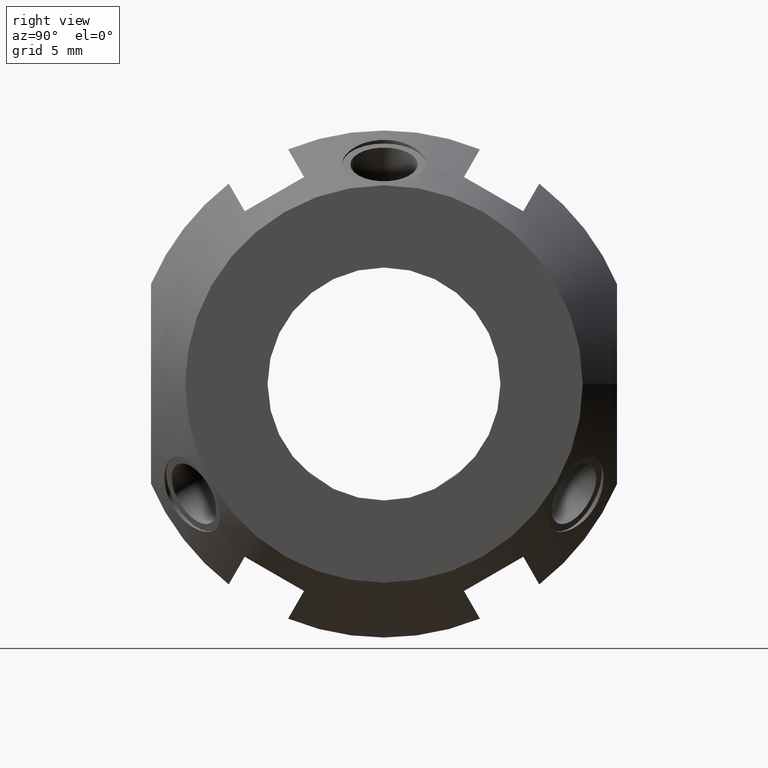
[diagram: clean part render]
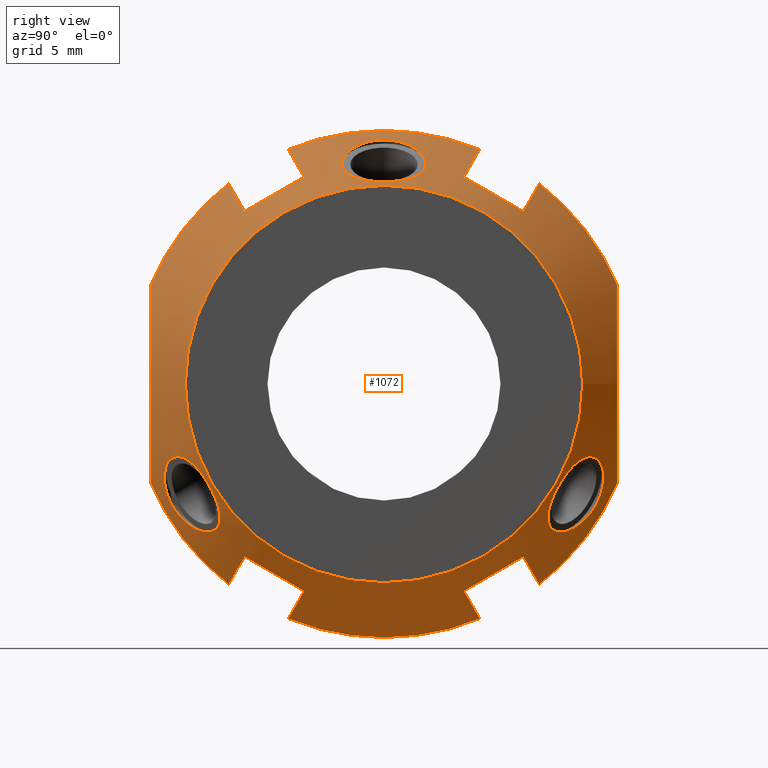
[diagram: same view with one face highlighted and labeled with its STEP entity id]
A machine part, right view. The second image highlights one B-rep face of the part: STEP entity #1072.
In plain terms, the highlighted conical surface has half-angle 30 deg.
Its self-contained STEP definition (entity closure, byte-faithful):
#90=CARTESIAN_POINT('',(15.065672554237217,10.165063509461094,-12.606406460551018));
#91=VERTEX_POINT('',#90);
#98=CARTESIAN_POINT('',(15.065672554237221,5.834936490538904,-15.106406460551016));
#99=VERTEX_POINT('',#98);
#100=CARTESIAN_POINT('',(15.065672554237221,5.834936490538904,-15.106406460551016));
#101=CARTESIAN_POINT('',(15.734144054606888,7.999999999999998,-13.856406460551021));
#102=CARTESIAN_POINT('',(15.065672554237217,10.165063509461094,-12.606406460551018));
#110=(BOUNDED_CURVE()B_SPLINE_CURVE(2,(#100,#101,#102),.UNSPECIFIED.,.F.,.U.)B_SPLINE_CURVE_WITH_KNOTS((3,3),(0.729099831313412,1.320290321878511),.UNSPECIFIED.)CURVE()GEOMETRIC_REPRESENTATION_ITEM()RATIONAL_B_SPLINE_CURVE((1.071623768673092,1.084626231326909,1.071623768673092))REPRESENTATION_ITEM(''));
#111=EDGE_CURVE('',#99,#91,#110,.T.);
#143=CARTESIAN_POINT('',(11.071796769724481,7.000087880450581,-17.124507866387543));
#144=VERTEX_POINT('',#143);
#145=CARTESIAN_POINT('',(11.071796769724473,7.000087880450582,-17.124507866387546));
#146=CARTESIAN_POINT('',(13.204284585915129,6.378792642015712,-16.04839294691773));
#147=CARTESIAN_POINT('',(15.065672554237221,5.834936490538904,-15.106406460551014));
#155=(BOUNDED_CURVE()B_SPLINE_CURVE(2,(#145,#146,#147),.UNSPECIFIED.,.F.,.U.)B_SPLINE_CURVE_WITH_KNOTS((3,3),(0.0,0.462399793100946),.UNSPECIFIED.)CURVE()GEOMETRIC_REPRESENTATION_ITEM()RATIONAL_B_SPLINE_CURVE((1.0,1.002263367631491,1.0))REPRESENTATION_ITEM(''));
#156=EDGE_CURVE('',#144,#99,#155,.T.);
#187=CARTESIAN_POINT('',(11.071796769724479,11.330214899372773,-14.624507866387546));
#188=VERTEX_POINT('',#187);
#195=CARTESIAN_POINT('',(15.065672554237217,10.165063509461094,-12.606406460551018));
#196=CARTESIAN_POINT('',(13.204284585814555,10.708919660967249,-13.548392946968557));
#197=CARTESIAN_POINT('',(11.071796769724473,11.330214899372775,-14.624507866387548));
#205=(BOUNDED_CURVE()B_SPLINE_CURVE(2,(#195,#196,#197),.UNSPECIFIED.,.F.,.U.)B_SPLINE_CURVE_WITH_KNOTS((3,3),(0.0,0.462399793100946),.UNSPECIFIED.)CURVE()GEOMETRIC_REPRESENTATION_ITEM()RATIONAL_B_SPLINE_CURVE((1.0,1.00226336761985,1.0))REPRESENTATION_ITEM(''));
#206=EDGE_CURVE('',#91,#188,#205,.T.);
#234=CARTESIAN_POINT('',(15.065672554237219,-10.165063509461092,-12.606406460551018));
#235=VERTEX_POINT('',#234);
#242=CARTESIAN_POINT('',(11.071796769724473,-11.330214899372775,-14.624507866387544));
#243=VERTEX_POINT('',#242);
#244=CARTESIAN_POINT('',(11.071796769724473,-11.330214899372775,-14.624507866387546));
#245=CARTESIAN_POINT('',(13.204284585565491,-10.708919661039914,-13.548392947094419));
#246=CARTESIAN_POINT('',(15.065672554237217,-10.165063509461092,-12.606406460551018));
#254=(BOUNDED_CURVE()B_SPLINE_CURVE(2,(#244,#245,#246),.UNSPECIFIED.,.F.,.U.)B_SPLINE_CURVE_WITH_KNOTS((3,3),(0.0,0.462399793100946),.UNSPECIFIED.)CURVE()GEOMETRIC_REPRESENTATION_ITEM()RATIONAL_B_SPLINE_CURVE((1.0,1.002263367607429,1.0))REPRESENTATION_ITEM(''));
#255=EDGE_CURVE('',#243,#235,#254,.T.);
#288=CARTESIAN_POINT('',(11.071796769724475,-7.000087880450582,-17.124507866387546));
#289=VERTEX_POINT('',#288);
#296=CARTESIAN_POINT('',(15.065672554237215,-5.834936490538903,-15.106406460551018));
#297=VERTEX_POINT('',#296);
#298=CARTESIAN_POINT('',(15.065672554237215,-5.834936490538903,-15.106406460551018));
#299=CARTESIAN_POINT('',(13.204284585917227,-6.3787926420151,-16.048392946916671));
#300=CARTESIAN_POINT('',(11.071796769724473,-7.000087880450582,-17.124507866387546));
#308=(BOUNDED_CURVE()B_SPLINE_CURVE(2,(#298,#299,#300),.UNSPECIFIED.,.F.,.U.)B_SPLINE_CURVE_WITH_KNOTS((3,3),(0.0,0.462399793100945),.UNSPECIFIED.)CURVE()GEOMETRIC_REPRESENTATION_ITEM()RATIONAL_B_SPLINE_CURVE((1.0,1.002263367636361,1.0))REPRESENTATION_ITEM(''));
#309=EDGE_CURVE('',#297,#289,#308,.T.);
#339=CARTESIAN_POINT('',(15.065672554237221,-10.165063509461092,-12.606406460551018));
#340=CARTESIAN_POINT('',(15.734144054606896,-8.0,-13.856406460551016));
#341=CARTESIAN_POINT('',(15.065672554237217,-5.834936490538903,-15.106406460551016));
#349=(BOUNDED_CURVE()B_SPLINE_CURVE(2,(#339,#340,#341),.UNSPECIFIED.,.F.,.U.)B_SPLINE_CURVE_WITH_KNOTS((3,3),(0.729099831313413,1.320290321878512),.UNSPECIFIED.)CURVE()GEOMETRIC_REPRESENTATION_ITEM()RATIONAL_B_SPLINE_CURVE((1.071623768673092,1.084626231326909,1.071623768673092))REPRESENTATION_ITEM(''));
#350=EDGE_CURVE('',#235,#297,#349,.T.);
#557=CARTESIAN_POINT('',(11.071796769724482,0.0,0.0));
#558=DIRECTION('',(1.0,0.0,0.0));
#559=DIRECTION('',(0.0,1.0,0.0));
#560=AXIS2_PLACEMENT_3D('',#557,#558,#559);
#561=CIRCLE('',#560,18.5);
#562=EDGE_CURVE('',#289,#144,#561,.T.);
#575=CARTESIAN_POINT('',(11.071796769724482,-17.000000000000043,-7.297259759663116));
#576=VERTEX_POINT('',#575);
#577=CARTESIAN_POINT('',(11.071796769724482,0.0,0.0));
#578=DIRECTION('',(1.0,0.0,0.0));
#579=DIRECTION('',(0.0,1.0,0.0));
#580=AXIS2_PLACEMENT_3D('',#577,#578,#579);
#581=CIRCLE('',#580,18.5);
#582=EDGE_CURVE('',#576,#243,#581,.T.);
#600=CARTESIAN_POINT('',(15.065672554237221,5.834936490538904,15.106406460551016));
#601=VERTEX_POINT('',#600);
#608=CARTESIAN_POINT('',(15.065672554237217,10.165063509461094,12.606406460551018));
#609=VERTEX_POINT('',#608);
#610=CARTESIAN_POINT('',(15.065672554237219,10.165063509461094,12.606406460551018));
#611=CARTESIAN_POINT('',(15.734144054606888,7.999999999999998,13.856406460551018));
#612=CARTESIAN_POINT('',(15.065672554237223,5.834936490538904,15.106406460551016));
#620=(BOUNDED_CURVE()B_SPLINE_CURVE(2,(#610,#611,#612),.UNSPECIFIED.,.F.,.U.)B_SPLINE_CURVE_WITH_KNOTS((3,3),(0.729099831313411,1.320290321878508),.UNSPECIFIED.)CURVE()GEOMETRIC_REPRESENTATION_ITEM()RATIONAL_B_SPLINE_CURVE((1.071623768673091,1.084626231326908,1.071623768673091))REPRESENTATION_ITEM(''));
#621=EDGE_CURVE('',#609,#601,#620,.T.);
#639=CARTESIAN_POINT('',(11.071796769724479,11.330214899372773,14.624507866387546));
#640=VERTEX_POINT('',#639);
#641=CARTESIAN_POINT('',(11.071796769724482,11.330214899372773,14.624507866387544));
#642=CARTESIAN_POINT('',(13.204284585649592,10.708919661015381,13.548392947051928));
#643=CARTESIAN_POINT('',(15.065672554237217,10.165063509461094,12.606406460551018));
#651=(BOUNDED_CURVE()B_SPLINE_CURVE(2,(#641,#642,#643),.UNSPECIFIED.,.F.,.U.)B_SPLINE_CURVE_WITH_KNOTS((3,3),(0.0,0.43790397564983),.UNSPECIFIED.)CURVE()GEOMETRIC_REPRESENTATION_ITEM()RATIONAL_B_SPLINE_CURVE((1.0,1.004151789649042,1.003771865033865))REPRESENTATION_ITEM(''));
#652=EDGE_CURVE('',#640,#609,#651,.T.);
#669=CARTESIAN_POINT('',(11.071796769724481,7.000087880450581,17.124507866387543));
#670=VERTEX_POINT('',#669);
#677=CARTESIAN_POINT('',(15.065672554237221,5.834936490538904,15.106406460551016));
#678=CARTESIAN_POINT('',(13.204284585653731,6.378792642091979,16.048392947049827));
#679=CARTESIAN_POINT('',(11.071796769724482,7.000087880450581,17.124507866387543));
#687=(BOUNDED_CURVE()B_SPLINE_CURVE(2,(#677,#678,#679),.UNSPECIFIED.,.F.,.U.)B_SPLINE_CURVE_WITH_KNOTS((3,3),(0.364479002347894,0.802382977996813),.UNSPECIFIED.)CURVE()GEOMETRIC_REPRESENTATION_ITEM()RATIONAL_B_SPLINE_CURVE((1.003771865033879,1.004151789649047,1.0))REPRESENTATION_ITEM(''));
#688=EDGE_CURVE('',#601,#670,#687,.T.);
#700=CARTESIAN_POINT('',(15.065672554237219,-10.165063509461092,12.606406460551018));
#701=VERTEX_POINT('',#700);
#708=CARTESIAN_POINT('',(15.065672554237215,-5.834936490538903,15.106406460551018));
#709=VERTEX_POINT('',#708);
#710=CARTESIAN_POINT('',(15.065672554237217,-5.834936490538903,15.106406460551016));
#711=CARTESIAN_POINT('',(15.734144054606888,-7.999999999999998,13.856406460551014));
#712=CARTESIAN_POINT('',(15.065672554237221,-10.165063509461092,12.606406460551018));
#720=(BOUNDED_CURVE()B_SPLINE_CURVE(2,(#710,#711,#712),.UNSPECIFIED.,.F.,.U.)B_SPLINE_CURVE_WITH_KNOTS((3,3),(0.72909983131341,1.320290321878508),.UNSPECIFIED.)CURVE()GEOMETRIC_REPRESENTATION_ITEM()RATIONAL_B_SPLINE_CURVE((1.071623768673092,1.084626231326909,1.071623768673092))REPRESENTATION_ITEM(''));
#721=EDGE_CURVE('',#709,#701,#720,.T.);
#739=CARTESIAN_POINT('',(11.071796769724475,-7.000087880450582,17.124507866387546));
#740=VERTEX_POINT('',#739);
#741=CARTESIAN_POINT('',(11.071796769724482,-7.000087880450581,17.124507866387539));
#742=CARTESIAN_POINT('',(13.204284585668972,-6.378792642087515,16.048392947042096));
#743=CARTESIAN_POINT('',(15.065672554237215,-5.834936490538903,15.106406460551018));
#751=(BOUNDED_CURVE()B_SPLINE_CURVE(2,(#741,#742,#743),.UNSPECIFIED.,.F.,.U.)B_SPLINE_CURVE_WITH_KNOTS((3,3),(0.0,0.437903975646609),.UNSPECIFIED.)CURVE()GEOMETRIC_REPRESENTATION_ITEM()RATIONAL_B_SPLINE_CURVE((1.0,1.004151789651634,1.003771865036253))REPRESENTATION_ITEM(''));
#752=EDGE_CURVE('',#740,#709,#751,.T.);
#769=CARTESIAN_POINT('',(11.071796769724473,-11.330214899372775,14.624507866387544));
#770=VERTEX_POINT('',#769);
#777=CARTESIAN_POINT('',(15.065672554237219,-10.165063509461092,12.606406460551018));
#778=CARTESIAN_POINT('',(13.204284585656112,-10.708919661013471,13.548392947048615));
#779=CARTESIAN_POINT('',(11.071796769724482,-11.330214899372775,14.624507866387539));
#787=(BOUNDED_CURVE()B_SPLINE_CURVE(2,(#777,#778,#779),.UNSPECIFIED.,.F.,.U.)B_SPLINE_CURVE_WITH_KNOTS((3,3),(0.364479002348584,0.802382977996812),.UNSPECIFIED.)CURVE()GEOMETRIC_REPRESENTATION_ITEM()RATIONAL_B_SPLINE_CURVE((1.003771865033523,1.004151789648647,1.0))REPRESENTATION_ITEM(''));
#788=EDGE_CURVE('',#701,#770,#787,.T.);
#800=CARTESIAN_POINT('',(11.071796769724482,17.000000000000043,7.297259759663101));
#801=VERTEX_POINT('',#800);
#802=CARTESIAN_POINT('',(11.071796769724482,0.0,0.0));
#803=DIRECTION('',(1.0,0.0,0.0));
#804=DIRECTION('',(0.0,1.0,0.0));
#805=AXIS2_PLACEMENT_3D('',#802,#803,#804);
#806=CIRCLE('',#805,18.5);
#807=EDGE_CURVE('',#801,#640,#806,.T.);
#826=CARTESIAN_POINT('',(11.071796769724482,-17.000000000000046,7.297259759663098));
#827=VERTEX_POINT('',#826);
#834=CARTESIAN_POINT('',(11.071796769724482,0.0,0.0));
#835=DIRECTION('',(1.0,0.0,0.0));
#836=DIRECTION('',(0.0,1.0,0.0));
#837=AXIS2_PLACEMENT_3D('',#834,#835,#836);
#838=CIRCLE('',#837,18.5);
#839=EDGE_CURVE('',#770,#827,#838,.T.);
#851=CARTESIAN_POINT('',(11.071796769724482,17.000000000000039,-7.297259759663119));
#852=VERTEX_POINT('',#851);
#853=CARTESIAN_POINT('',(11.071796769724482,17.000000000000039,-7.297259759663113));
#854=CARTESIAN_POINT('',(16.057294364483411,17.000000000000043,-2.659109E-015));
#855=CARTESIAN_POINT('',(11.071796769724482,17.000000000000043,7.297259759663104));
#863=(BOUNDED_CURVE()B_SPLINE_CURVE(2,(#853,#854,#855),.UNSPECIFIED.,.F.,.U.)B_SPLINE_CURVE_WITH_KNOTS((3,3),(0.0,1.549193338482942),.UNSPECIFIED.)CURVE()GEOMETRIC_REPRESENTATION_ITEM()RATIONAL_B_SPLINE_CURVE((1.0,1.088235294117646,1.0))REPRESENTATION_ITEM(''));
#864=EDGE_CURVE('',#852,#801,#863,.T.);
#882=CARTESIAN_POINT('',(11.071796769724482,-17.000000000000046,7.297259759663099));
#883=CARTESIAN_POINT('',(16.057294364483408,-17.000000000000043,-2.246655E-015));
#884=CARTESIAN_POINT('',(11.071796769724482,-17.000000000000043,-7.29725975966311));
#892=(BOUNDED_CURVE()B_SPLINE_CURVE(2,(#882,#883,#884),.UNSPECIFIED.,.F.,.U.)B_SPLINE_CURVE_WITH_KNOTS((3,3),(0.0,1.549193338482942),.UNSPECIFIED.)CURVE()GEOMETRIC_REPRESENTATION_ITEM()RATIONAL_B_SPLINE_CURVE((1.0,1.088235294117645,1.0))REPRESENTATION_ITEM(''));
#893=EDGE_CURVE('',#827,#576,#892,.T.);
#899=CARTESIAN_POINT('',(14.535898384862239,0.0,0.0));
#900=DIRECTION('',(-1.0,0.0,0.0));
#901=DIRECTION('',(0.0,1.0,0.0));
#902=AXIS2_PLACEMENT_3D('',#899,#900,#901);
#903=CONICAL_SURFACE('',#902,16.5,29.999999999999964);
#904=ORIENTED_EDGE('',*,*,#206,.T.);
#905=CARTESIAN_POINT('',(11.071796769724482,0.0,0.0));
#906=DIRECTION('',(1.0,0.0,0.0));
#907=DIRECTION('',(0.0,1.0,0.0));
#908=AXIS2_PLACEMENT_3D('',#905,#906,#907);
#909=CIRCLE('',#908,18.5);
#910=EDGE_CURVE('',#188,#852,#909,.T.);
#911=ORIENTED_EDGE('',*,*,#910,.T.);
#912=ORIENTED_EDGE('',*,*,#864,.T.);
#913=ORIENTED_EDGE('',*,*,#807,.T.);
#914=ORIENTED_EDGE('',*,*,#652,.T.);
#915=ORIENTED_EDGE('',*,*,#621,.T.);
#916=ORIENTED_EDGE('',*,*,#688,.T.);
#917=CARTESIAN_POINT('',(11.071796769724482,0.0,0.0));
#918=DIRECTION('',(1.0,0.0,0.0));
#919=DIRECTION('',(0.0,1.0,0.0));
#920=AXIS2_PLACEMENT_3D('',#917,#918,#919);
#921=CIRCLE('',#920,18.5);
#922=EDGE_CURVE('',#670,#740,#921,.T.);
#923=ORIENTED_EDGE('',*,*,#922,.T.);
#924=ORIENTED_EDGE('',*,*,#752,.T.);
#925=ORIENTED_EDGE('',*,*,#721,.T.);
#926=ORIENTED_EDGE('',*,*,#788,.T.);
#927=ORIENTED_EDGE('',*,*,#839,.T.);
#928=ORIENTED_EDGE('',*,*,#893,.T.);
#929=ORIENTED_EDGE('',*,*,#582,.T.);
#930=ORIENTED_EDGE('',*,*,#255,.T.);
#931=ORIENTED_EDGE('',*,*,#350,.T.);
#932=ORIENTED_EDGE('',*,*,#309,.T.);
#933=ORIENTED_EDGE('',*,*,#562,.T.);
#934=ORIENTED_EDGE('',*,*,#156,.T.);
#935=ORIENTED_EDGE('',*,*,#111,.T.);
#936=EDGE_LOOP('',(#904,#911,#912,#913,#914,#915,#916,#923,#924,#925,#926,#927,#928,#929,#930,#931,#932,#933,#934,#935));
#937=FACE_OUTER_BOUND('',#936,.T.);
#938=CARTESIAN_POINT('',(17.999999999999996,14.500000000000002,0.0));
#939=VERTEX_POINT('',#938);
#940=CARTESIAN_POINT('',(17.999999999999996,0.0,0.0));
#941=DIRECTION('',(1.0,0.0,0.0));
#942=DIRECTION('',(0.0,1.0,0.0));
#943=AXIS2_PLACEMENT_3D('',#940,#941,#942);
#944=CIRCLE('',#943,14.500000000000002);
#945=EDGE_CURVE('',#939,#939,#944,.T.);
#946=ORIENTED_EDGE('',*,*,#945,.F.);
#947=EDGE_LOOP('',(#946));
#948=FACE_BOUND('',#947,.T.);
#949=CARTESIAN_POINT('',(15.026787480931782,3.036601778511436,15.929742002480991));
#950=VERTEX_POINT('',#949);
#951=CARTESIAN_POINT('',(15.026787480931782,3.036601778511436,15.929742002480991));
#952=CARTESIAN_POINT('',(15.338515643801149,3.002900696026921,15.752949130599774));
#953=CARTESIAN_POINT('',(15.672174376741108,2.89949125537267,15.577054226772024));
#954=CARTESIAN_POINT('',(16.289332365641176,2.557120696998322,15.275759611797103));
#955=CARTESIAN_POINT('',(16.572587213106701,2.318193463055023,15.149821053804956));
#956=CARTESIAN_POINT('',(17.020933127662165,1.787784123404033,14.960899078841493));
#957=CARTESIAN_POINT('',(17.217946640848126,1.458567887797806,14.884375603593549));
#958=CARTESIAN_POINT('',(17.480207307562367,0.744604438970604,14.78555856961121));
#959=CARTESIAN_POINT('',(17.545061658979726,0.359797028523848,14.762658773652735));
#960=CARTESIAN_POINT('',(17.545061658979726,-0.359797028523848,14.762658773652735));
#961=CARTESIAN_POINT('',(17.480207307562367,-0.744604438970603,14.78555856961121));
#962=CARTESIAN_POINT('',(17.217946640848126,-1.458567887797805,14.884375603593549));
#963=CARTESIAN_POINT('',(17.020933127662165,-1.787784123404033,14.960899078841493));
#964=CARTESIAN_POINT('',(16.572587213106701,-2.318193463055023,15.149821053804956));
#965=CARTESIAN_POINT('',(16.289332365641176,-2.557120696998322,15.275759611797103));
#966=CARTESIAN_POINT('',(15.672174376741108,-2.89949125537267,15.577054226772024));
#967=CARTESIAN_POINT('',(15.338515643801149,-3.002900696026921,15.752949130599774));
#968=CARTESIAN_POINT('',(14.673696032255405,-3.074774665833798,16.129993563564216));
#969=CARTESIAN_POINT('',(14.299411160467493,-3.029019873863895,16.359378777204686));
#970=CARTESIAN_POINT('',(13.615808920730432,-2.756112566130418,16.807617219611959));
#971=CARTESIAN_POINT('',(13.30602576636781,-2.528998099455222,17.025782864436461));
#972=CARTESIAN_POINT('',(12.817557115748851,-1.981763749329102,17.381954443337083));
#973=CARTESIAN_POINT('',(12.608179783110225,-1.627329405649048,17.542192518244494));
#974=CARTESIAN_POINT('',(12.330686545016773,-0.84033085893321,17.757809729557852));
#975=CARTESIAN_POINT('',(12.262306695894647,-0.407714602307639,17.812658773652732));
#976=CARTESIAN_POINT('',(12.262306695894647,0.407714602307639,17.812658773652732));
#977=CARTESIAN_POINT('',(12.330686545016773,0.840330858933211,17.757809729557849));
#978=CARTESIAN_POINT('',(12.608179783110225,1.62732940564905,17.542192518244491));
#979=CARTESIAN_POINT('',(12.817557115748851,1.981763749329102,17.381954443337083));
#980=CARTESIAN_POINT('',(13.306025766367808,2.528998099455222,17.025782864436461));
#981=CARTESIAN_POINT('',(13.61580892073043,2.756112566130415,16.807617219611959));
#982=CARTESIAN_POINT('',(14.299411160467489,3.029019873863895,16.359378777204686));
#983=CARTESIAN_POINT('',(14.673696032255405,3.074774665833798,16.129993563564216));
#984=CARTESIAN_POINT('',(15.026787480931782,3.036601778511436,15.929742002480991));
#985=B_SPLINE_CURVE_WITH_KNOTS('',3,(#951,#952,#953,#954,#955,#956,#957,#958,#959,#960,#961,#962,#963,#964,#965,#966,#967,#968,#969,#970,#971,#972,#973,#974,#975,#976,#977,#978,#979,#980,#981,#982,#983,#984),.UNSPECIFIED.,.T.,.U.,(4,2,2,2,2,2,2,2,2,2,2,2,2,2,2,2,4),(0.0,0.10798580324797,0.21597160649594,0.323910715053094,0.431849823610249,0.539788932167403,0.647728040724557,0.755713843972527,0.863699647220497,0.986014112985614,1.10832857875073,1.230642959443022,1.352957340135314,1.475271720827606,1.597586101519898,1.719900567285014,1.842215033050131),.UNSPECIFIED.);
#986=EDGE_CURVE('',#950,#950,#985,.T.);
#987=ORIENTED_EDGE('',*,*,#986,.T.);
#988=EDGE_LOOP('',(#987));
#989=FACE_BOUND('',#988,.T.);
#990=CARTESIAN_POINT('',(15.026787480931782,-15.313862139136251,-5.335096719872582));
#991=VERTEX_POINT('',#990);
#992=CARTESIAN_POINT('',(15.026787480931782,-15.313862139136251,-5.335096719872582));
#993=CARTESIAN_POINT('',(15.338515643801149,-15.143904479636852,-5.275886277498597));
#994=CARTESIAN_POINT('',(15.672174376741106,-14.939870304198681,-5.277494028182446));
#995=CARTESIAN_POINT('',(16.289332365641176,-14.507756234419769,-5.423348321755031));
#996=CARTESIAN_POINT('',(16.572587213106701,-14.27922662691094,-5.567296097009802));
#997=CARTESIAN_POINT('',(17.020933127662165,-13.850410727433955,-5.932183072070355));
#998=CARTESIAN_POINT('',(17.217946640848126,-13.61953133608025,-6.179030957819663));
#999=CARTESIAN_POINT('',(17.480207307562363,-13.176971549911316,-6.747932924886401));
#1000=CARTESIAN_POINT('',(17.545061658979726,-12.964736039646422,-7.069736019918556));
#1001=CARTESIAN_POINT('',(17.545061658979726,-12.604939011122573,-7.69292275373417));
#1002=CARTESIAN_POINT('',(17.480207307562363,-12.432367110940717,-8.037625644724802));
#1003=CARTESIAN_POINT('',(17.217946640848126,-12.160963448282448,-8.705344645773877));
#1004=CARTESIAN_POINT('',(17.020933127662168,-12.062626604029926,-9.028716006771127));
#1005=CARTESIAN_POINT('',(16.572587213106701,-11.961033163855921,-9.582524956795147));
#1006=CARTESIAN_POINT('',(16.289332365641176,-11.950635537421446,-9.852411290042069));
#1007=CARTESIAN_POINT('',(15.672174376741108,-12.040379048826006,-10.299560198589576));
#1008=CARTESIAN_POINT('',(15.338515643801149,-12.141003783609934,-10.477062853101167));
#1009=CARTESIAN_POINT('',(14.673696032255405,-12.4315968560092,-10.727829753306981));
#1010=CARTESIAN_POINT('',(14.299411160467493,-12.653127674259322,-10.802897547936411));
#1011=CARTESIAN_POINT('',(13.615808920730432,-13.177767206203523,-10.790672107764436));
#1012=CARTESIAN_POINT('',(13.30602576636781,-13.480261430192153,-10.703068032469012));
#1013=CARTESIAN_POINT('',(12.817557115748851,-14.062332240689166,-10.407234972886634));
#1014=CARTESIAN_POINT('',(12.608179783110227,-14.378319656052525,-10.180404864739751));
#1015=CARTESIAN_POINT('',(12.330686545016775,-14.958548911900969,-9.606652736199081));
#1016=CARTESIAN_POINT('',(12.262306695894647,-15.222357705773216,-9.25942058991865));
#1017=CARTESIAN_POINT('',(12.262306695894647,-15.630072308080853,-8.553238183734079));
#1018=CARTESIAN_POINT('',(12.330686545016773,-15.79887977083418,-8.151156993358764));
#1019=CARTESIAN_POINT('',(12.608179783110227,-16.005649061701575,-7.361787653504734));
#1020=CARTESIAN_POINT('',(12.817557115748851,-16.044095990018267,-6.974719470450439));
#1021=CARTESIAN_POINT('',(13.306025766367808,-16.00925952964737,-6.32271483196744));
#1022=CARTESIAN_POINT('',(13.615808920730434,-15.933879772333938,-6.016945111847514));
#1023=CARTESIAN_POINT('',(14.299411160467494,-15.682147548123213,-5.556481229268271));
#1024=CARTESIAN_POINT('',(14.673696032255403,-15.506371521842997,-5.402163810257226));
#1025=CARTESIAN_POINT('',(15.02678748093178,-15.313862139136251,-5.335096719872581));
#1026=B_SPLINE_CURVE_WITH_KNOTS('',3,(#992,#993,#994,#995,#996,#997,#998,#999,#1000,#1001,#1002,#1003,#1004,#1005,#1006,#1007,#1008,#1009,#1010,#1011,#1012,#1013,#1014,#1015,#1016,#1017,#1018,#1019,#1020,#1021,#1022,#1023,#1024,#1025),.UNSPECIFIED.,.T.,.U.,(4,2,2,2,2,2,2,2,2,2,2,2,2,2,2,2,4),(0.0,0.10798580324797,0.21597160649594,0.323910715053094,0.431849823610249,0.539788932167403,0.647728040724557,0.755713843972527,0.863699647220497,0.986014112985614,1.108328578750731,1.230642959443022,1.352957340135314,1.475271720827606,1.597586101519897,1.719900567285014,1.842215033050131),.UNSPECIFIED.);
#1027=EDGE_CURVE('',#991,#991,#1026,.T.);
#1028=ORIENTED_EDGE('',*,*,#1027,.T.);
#1029=EDGE_LOOP('',(#1028));
#1030=FACE_BOUND('',#1029,.T.);
#1031=CARTESIAN_POINT('',(15.026787480931782,12.277260360624808,-10.594645282608413));
#1032=VERTEX_POINT('',#1031);
#1033=CARTESIAN_POINT('',(15.026787480931782,12.277260360624808,-10.594645282608413));
#1034=CARTESIAN_POINT('',(15.338515643801149,12.141003783609925,-10.477062853101181));
#1035=CARTESIAN_POINT('',(15.672174376741108,12.040379048826001,-10.299560198589589));
#1036=CARTESIAN_POINT('',(16.289332365641176,11.950635537421439,-9.852411290042078));
#1037=CARTESIAN_POINT('',(16.572587213106701,11.961033163855912,-9.582524956795158));
#1038=CARTESIAN_POINT('',(17.020933127662165,12.062626604029917,-9.028716006771138));
#1039=CARTESIAN_POINT('',(17.217946640848126,12.160963448282443,-8.70534464577389));
#1040=CARTESIAN_POINT('',(17.480207307562363,12.43236711094071,-8.037625644724814));
#1041=CARTESIAN_POINT('',(17.545061658979726,12.604939011122568,-7.692922753734182));
#1042=CARTESIAN_POINT('',(17.545061658979726,12.964736039646411,-7.069736019918569));
#1043=CARTESIAN_POINT('',(17.480207307562363,13.176971549911315,-6.747932924886411));
#1044=CARTESIAN_POINT('',(17.217946640848126,13.619531336080248,-6.179030957819672));
#1045=CARTESIAN_POINT('',(17.020933127662165,13.85041072743395,-5.932183072070368));
#1046=CARTESIAN_POINT('',(16.572587213106697,14.279226626910937,-5.567296097009812));
#1047=CARTESIAN_POINT('',(16.289332365641172,14.507756234419769,-5.423348321755039));
#1048=CARTESIAN_POINT('',(15.672174376741104,14.939870304198678,-5.277494028182455));
#1049=CARTESIAN_POINT('',(15.338515643801149,15.143904479636848,-5.275886277498607));
#1050=CARTESIAN_POINT('',(14.673696032255405,15.506371521842993,-5.402163810257237));
#1051=CARTESIAN_POINT('',(14.299411160467493,15.682147548123211,-5.556481229268282));
#1052=CARTESIAN_POINT('',(13.615808920730432,15.933879772333935,-6.016945111847527));
#1053=CARTESIAN_POINT('',(13.30602576636781,16.00925952964737,-6.322714831967451));
#1054=CARTESIAN_POINT('',(12.817557115748851,16.044095990018263,-6.974719470450451));
#1055=CARTESIAN_POINT('',(12.608179783110224,16.005649061701565,-7.361787653504745));
#1056=CARTESIAN_POINT('',(12.33068654501677,15.798879770834171,-8.151156993358773));
#1057=CARTESIAN_POINT('',(12.262306695894644,15.630072308080848,-8.553238183734088));
#1058=CARTESIAN_POINT('',(12.262306695894644,15.222357705773209,-9.25942058991866));
#1059=CARTESIAN_POINT('',(12.330686545016773,14.958548911900959,-9.606652736199093));
#1060=CARTESIAN_POINT('',(12.608179783110225,14.378319656052515,-10.180404864739764));
#1061=CARTESIAN_POINT('',(12.817557115748851,14.062332240689157,-10.407234972886648));
#1062=CARTESIAN_POINT('',(13.306025766367808,13.480261430192147,-10.703068032469023));
#1063=CARTESIAN_POINT('',(13.615808920730428,13.177767206203516,-10.790672107764445));
#1064=CARTESIAN_POINT('',(14.299411160467487,12.653127674259309,-10.802897547936418));
#1065=CARTESIAN_POINT('',(14.673696032255403,12.431596856009193,-10.727829753306995));
#1066=CARTESIAN_POINT('',(15.02678748093178,12.277260360624812,-10.594645282608415));
#1067=B_SPLINE_CURVE_WITH_KNOTS('',3,(#1033,#1034,#1035,#1036,#1037,#1038,#1039,#1040,#1041,#1042,#1043,#1044,#1045,#1046,#1047,#1048,#1049,#1050,#1051,#1052,#1053,#1054,#1055,#1056,#1057,#1058,#1059,#1060,#1061,#1062,#1063,#1064,#1065,#1066),.UNSPECIFIED.,.T.,.U.,(4,2,2,2,2,2,2,2,2,2,2,2,2,2,2,2,4),(0.0,0.10798580324797,0.21597160649594,0.323910715053094,0.431849823610249,0.539788932167403,0.647728040724557,0.755713843972528,0.863699647220498,0.986014112985614,1.108328578750731,1.230642959443022,1.352957340135314,1.475271720827606,1.597586101519898,1.719900567285015,1.842215033050131),.UNSPECIFIED.);
#1068=EDGE_CURVE('',#1032,#1032,#1067,.T.);
#1069=ORIENTED_EDGE('',*,*,#1068,.T.);
#1070=EDGE_LOOP('',(#1069));
#1071=FACE_BOUND('',#1070,.T.);
#1072=ADVANCED_FACE('',(#937,#948,#989,#1030,#1071),#903,.T.);